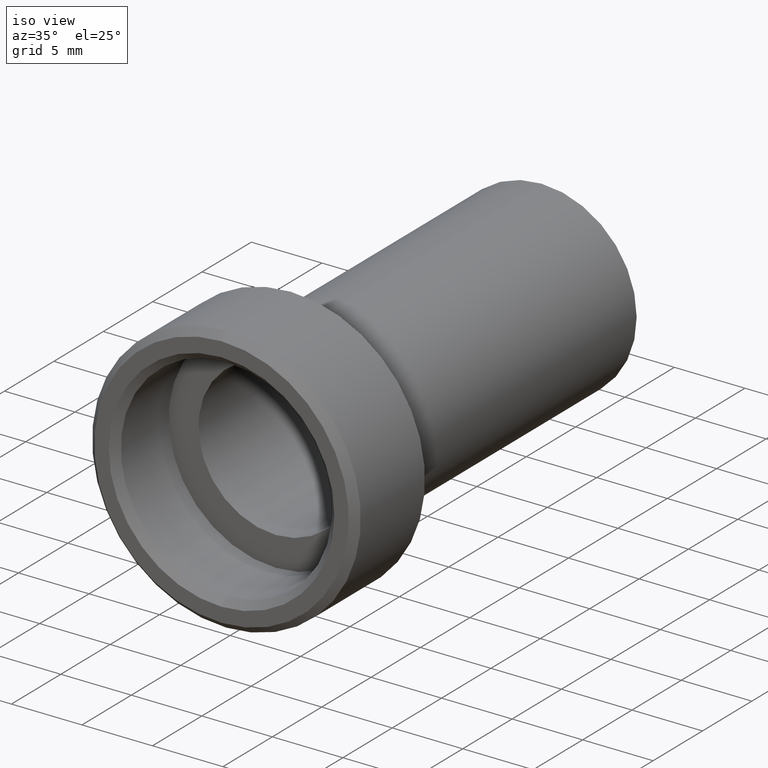
[diagram: clean part render]
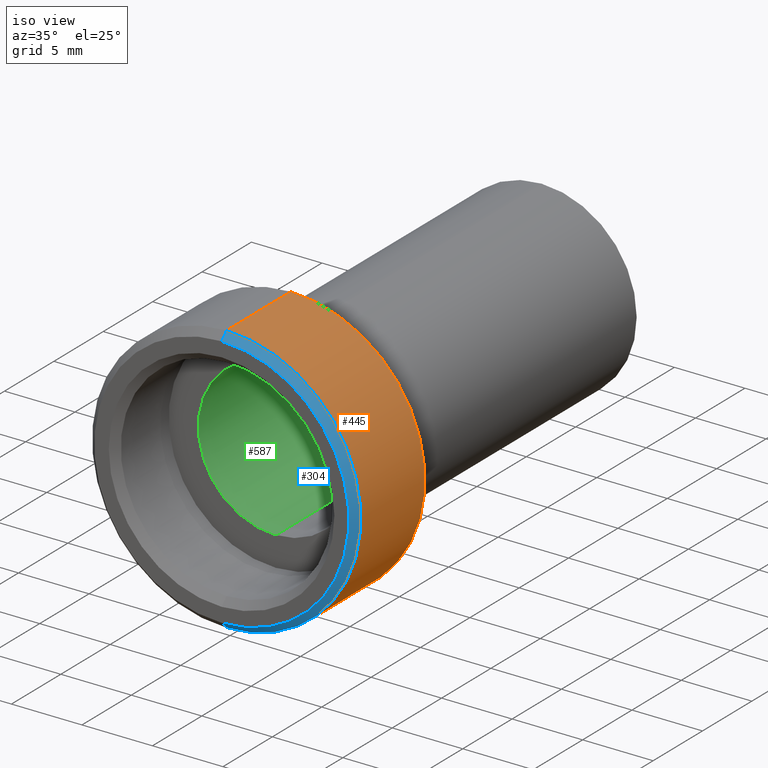
[diagram: same view with three faces highlighted in distinct colors, each labeled with its STEP entity id]
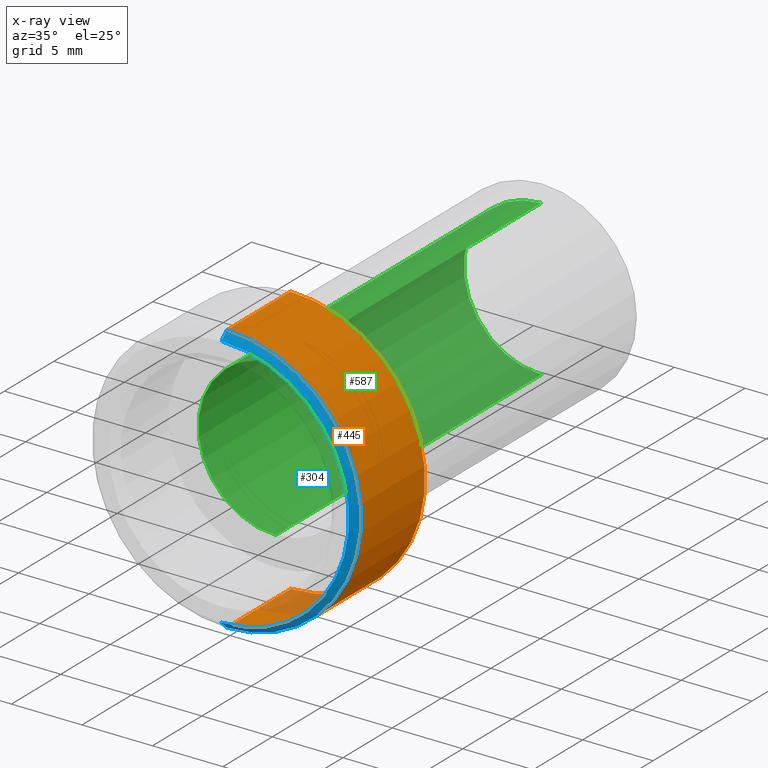
[diagram: x-ray of the same camera — body ghosted, the three highlighted faces saturated]
A machine part, iso view with three faces highlighted in distinct colors.
The next image is the same camera in x-ray (body ghosted, the three faces saturated) — at least one of them is partly hidden behind the body in this view.
Their STEP definitions:

[orange] entity #445 — the highlighted cylindrical surface (partial cylindrical patch) has radius 9.525 mm, axis along (-0, 1, -0).
#21 = AXIS2_PLACEMENT_3D ( 'NONE', #619, #345, #470 ) ;
#36 = VERTEX_POINT ( 'NONE', #77 ) ;
#38 = LINE ( 'NONE', #720, #203 ) ;
#52 = VERTEX_POINT ( 'NONE', #367 ) ;
#77 = CARTESIAN_POINT ( 'NONE',  ( 0.0000000000000000000, -5.357145825433104100, 9.525000000000007500 ) ) ;
#96 = CARTESIAN_POINT ( 'NONE',  ( 0.0000000000000000000, 44.59859774529311900, 9.525000000000005700 ) ) ;
#97 = EDGE_CURVE ( 'NONE', #36, #344, #809, .T. ) ;
#125 = CIRCLE ( 'NONE', #686, 9.525000000000003900 ) ;
#144 = CARTESIAN_POINT ( 'NONE',  ( 0.0000000000000000000, 1.142854174566894300, 0.0000000000000000000 ) ) ;
#182 = ORIENTED_EDGE ( 'NONE', *, *, #299, .T. ) ;
#193 = CIRCLE ( 'NONE', #703, 9.525000000000007500 ) ;
#203 = VECTOR ( 'NONE', #313, 1000.000000000000000 ) ;
#269 = CARTESIAN_POINT ( 'NONE',  ( 1.166476076187854400E-015, 1.142854174566894300, -9.525000000000003900 ) ) ;
#299 = EDGE_CURVE ( 'NONE', #52, #411, #38, .T. ) ;
#313 = DIRECTION ( 'NONE',  ( -0.0000000000000000000, 1.000000000000000000, -0.0000000000000000000 ) ) ;
#344 = VERTEX_POINT ( 'NONE', #670 ) ;
#345 = DIRECTION ( 'NONE',  ( -0.0000000000000000000, 1.000000000000000000, -0.0000000000000000000 ) ) ;
#355 = DIRECTION ( 'NONE',  ( -0.0000000000000000000, 1.000000000000000000, -0.0000000000000000000 ) ) ;
#367 = CARTESIAN_POINT ( 'NONE',  ( 1.166476076187854800E-015, -5.357145825433104100, -9.525000000000007500 ) ) ;
#411 = VERTEX_POINT ( 'NONE', #269 ) ;
#445 = ADVANCED_FACE ( 'NONE', ( #520 ), #886, .T. ) ;
#447 = ORIENTED_EDGE ( 'NONE', *, *, #696, .F. ) ;
#456 = EDGE_LOOP ( 'NONE', ( #839, #182, #447, #603 ) ) ;
#470 = DIRECTION ( 'NONE',  ( 0.0000000000000000000, 0.0000000000000000000, 1.000000000000000000 ) ) ;
#472 = DIRECTION ( 'NONE',  ( 0.0000000000000000000, 0.0000000000000000000, 1.000000000000000000 ) ) ;
#488 = EDGE_CURVE ( 'NONE', #36, #52, #193, .T. ) ;
#520 = FACE_OUTER_BOUND ( 'NONE', #456, .T. ) ;
#575 = DIRECTION ( 'NONE',  ( -0.0000000000000000000, 1.000000000000000000, -0.0000000000000000000 ) ) ;
#603 = ORIENTED_EDGE ( 'NONE', *, *, #97, .F. ) ;
#619 = CARTESIAN_POINT ( 'NONE',  ( 0.0000000000000000000, 44.59859774529311900, 0.0000000000000000000 ) ) ;
#627 = DIRECTION ( 'NONE',  ( 0.0000000000000000000, 0.0000000000000000000, 1.000000000000000000 ) ) ;
#670 = CARTESIAN_POINT ( 'NONE',  ( 0.0000000000000000000, 1.142854174566894300, 9.525000000000003900 ) ) ;
#686 = AXIS2_PLACEMENT_3D ( 'NONE', #144, #355, #627 ) ;
#696 = EDGE_CURVE ( 'NONE', #344, #411, #125, .T. ) ;
#703 = AXIS2_PLACEMENT_3D ( 'NONE', #748, #896, #472 ) ;
#720 = CARTESIAN_POINT ( 'NONE',  ( 1.166476076187854600E-015, 44.59859774529311900, -9.525000000000005700 ) ) ;
#748 = CARTESIAN_POINT ( 'NONE',  ( 0.0000000000000000000, -5.357145825433104100, 0.0000000000000000000 ) ) ;
#798 = VECTOR ( 'NONE', #575, 1000.000000000000000 ) ;
#809 = LINE ( 'NONE', #96, #798 ) ;
#839 = ORIENTED_EDGE ( 'NONE', *, *, #488, .T. ) ;
#886 = CYLINDRICAL_SURFACE ( 'NONE', #21, 9.525000000000005700 ) ;
#896 = DIRECTION ( 'NONE',  ( -0.0000000000000000000, 1.000000000000000000, -0.0000000000000000000 ) ) ;

[blue] entity #304 — the highlighted conical surface has half-angle 45 deg.
#36 = VERTEX_POINT ( 'NONE', #77 ) ;
#52 = VERTEX_POINT ( 'NONE', #367 ) ;
#61 = VECTOR ( 'NONE', #842, 1000.000000000000000 ) ;
#69 = LINE ( 'NONE', #170, #333 ) ;
#77 = CARTESIAN_POINT ( 'NONE',  ( 0.0000000000000000000, -5.357145825433104100, 9.525000000000007500 ) ) ;
#103 = FACE_OUTER_BOUND ( 'NONE', #753, .T. ) ;
#132 = CARTESIAN_POINT ( 'NONE',  ( 1.135859906209170800E-015, -5.857145825433105000, -9.025000000000005700 ) ) ;
#170 = CARTESIAN_POINT ( 'NONE',  ( 0.0000000000000000000, -5.857145825433105000, 9.025000000000005700 ) ) ;
#193 = CIRCLE ( 'NONE', #703, 9.525000000000007500 ) ;
#196 = CARTESIAN_POINT ( 'NONE',  ( 0.0000000000000000000, -5.857145825433105000, 9.025000000000005700 ) ) ;
#246 = ORIENTED_EDGE ( 'NONE', *, *, #607, .T. ) ;
#253 = DIRECTION ( 'NONE',  ( 0.0000000000000000000, 0.0000000000000000000, 1.000000000000000000 ) ) ;
#304 = ADVANCED_FACE ( 'NONE', ( #103 ), #419, .T. ) ;
#317 = CARTESIAN_POINT ( 'NONE',  ( 0.0000000000000000000, -5.857145825433105000, 0.0000000000000000000 ) ) ;
#333 = VECTOR ( 'NONE', #725, 1000.000000000000000 ) ;
#337 = DIRECTION ( 'NONE',  ( -0.0000000000000000000, 1.000000000000000000, -0.0000000000000000000 ) ) ;
#367 = CARTESIAN_POINT ( 'NONE',  ( 1.166476076187854800E-015, -5.357145825433104100, -9.525000000000007500 ) ) ;
#400 = DIRECTION ( 'NONE',  ( 0.0000000000000000000, 0.0000000000000000000, 1.000000000000000000 ) ) ;
#401 = AXIS2_PLACEMENT_3D ( 'NONE', #317, #591, #253 ) ;
#419 = CONICAL_SURFACE ( 'NONE', #803, 9.025000000000005700, 0.7853981633974500600 ) ;
#472 = DIRECTION ( 'NONE',  ( 0.0000000000000000000, 0.0000000000000000000, 1.000000000000000000 ) ) ;
#473 = ORIENTED_EDGE ( 'NONE', *, *, #488, .F. ) ;
#488 = EDGE_CURVE ( 'NONE', #36, #52, #193, .T. ) ;
#522 = VERTEX_POINT ( 'NONE', #132 ) ;
#523 = VERTEX_POINT ( 'NONE', #196 ) ;
#541 = CIRCLE ( 'NONE', #401, 9.025000000000005700 ) ;
#591 = DIRECTION ( 'NONE',  ( -0.0000000000000000000, 1.000000000000000000, -0.0000000000000000000 ) ) ;
#607 = EDGE_CURVE ( 'NONE', #522, #52, #849, .T. ) ;
#649 = CARTESIAN_POINT ( 'NONE',  ( 0.0000000000000000000, -5.857145825433105000, 0.0000000000000000000 ) ) ;
#673 = ORIENTED_EDGE ( 'NONE', *, *, #854, .T. ) ;
#675 = ORIENTED_EDGE ( 'NONE', *, *, #889, .F. ) ;
#703 = AXIS2_PLACEMENT_3D ( 'NONE', #748, #896, #472 ) ;
#725 = DIRECTION ( 'NONE',  ( 0.0000000000000000000, 0.7071067811865463500, 0.7071067811865487900 ) ) ;
#748 = CARTESIAN_POINT ( 'NONE',  ( 0.0000000000000000000, -5.357145825433104100, 0.0000000000000000000 ) ) ;
#753 = EDGE_LOOP ( 'NONE', ( #673, #246, #473, #675 ) ) ;
#803 = AXIS2_PLACEMENT_3D ( 'NONE', #649, #337, #400 ) ;
#840 = CARTESIAN_POINT ( 'NONE',  ( 1.105243736230487000E-015, -5.857145825433105000, -9.025000000000005700 ) ) ;
#842 = DIRECTION ( 'NONE',  ( 8.659560562354948900E-017, 0.7071067811865463500, -0.7071067811865487900 ) ) ;
#849 = LINE ( 'NONE', #840, #61 ) ;
#854 = EDGE_CURVE ( 'NONE', #523, #522, #541, .T. ) ;
#889 = EDGE_CURVE ( 'NONE', #523, #36, #69, .T. ) ;
#896 = DIRECTION ( 'NONE',  ( -0.0000000000000000000, 1.000000000000000000, -0.0000000000000000000 ) ) ;

[green] entity #587 — the highlighted cylindrical surface (partial cylindrical patch) has radius 5.5 mm, axis along (-0, 1, -0).
#7 = AXIS2_PLACEMENT_3D ( 'NONE', #761, #831, #63 ) ;
#14 = EDGE_CURVE ( 'NONE', #589, #431, #830, .T. ) ;
#56 = CARTESIAN_POINT ( 'NONE',  ( 0.0000000000000000000, 26.54285417456689400, 0.0000000000000000000 ) ) ;
#63 = DIRECTION ( 'NONE',  ( 0.0000000000000000000, 0.0000000000000000000, 1.000000000000000000 ) ) ;
#66 = CARTESIAN_POINT ( 'NONE',  ( 6.735557395310448900E-016, -0.3571458254331069700, -5.500000000000005300 ) ) ;
#74 = EDGE_LOOP ( 'NONE', ( #797, #585, #895, #632 ) ) ;
#86 = AXIS2_PLACEMENT_3D ( 'NONE', #303, #480, #572 ) ;
#114 = EDGE_CURVE ( 'NONE', #589, #302, #413, .T. ) ;
#121 = CARTESIAN_POINT ( 'NONE',  ( 0.0000000000000000000, 26.54285417456689400, 5.500000000000005300 ) ) ;
#154 = LINE ( 'NONE', #550, #383 ) ;
#229 = DIRECTION ( 'NONE',  ( -0.0000000000000000000, 1.000000000000000000, -0.0000000000000000000 ) ) ;
#239 = VECTOR ( 'NONE', #229, 1000.000000000000000 ) ;
#302 = VERTEX_POINT ( 'NONE', #746 ) ;
#303 = CARTESIAN_POINT ( 'NONE',  ( 0.0000000000000000000, -0.3571458254331069700, 0.0000000000000000000 ) ) ;
#336 = FACE_OUTER_BOUND ( 'NONE', #74, .T. ) ;
#371 = EDGE_CURVE ( 'NONE', #302, #402, #446, .T. ) ;
#383 = VECTOR ( 'NONE', #754, 1000.000000000000000 ) ;
#402 = VERTEX_POINT ( 'NONE', #121 ) ;
#413 = LINE ( 'NONE', #706, #239 ) ;
#431 = VERTEX_POINT ( 'NONE', #524 ) ;
#446 = CIRCLE ( 'NONE', #487, 5.500000000000005300 ) ;
#462 = DIRECTION ( 'NONE',  ( -0.0000000000000000000, 1.000000000000000000, -0.0000000000000000000 ) ) ;
#468 = DIRECTION ( 'NONE',  ( 0.0000000000000000000, 0.0000000000000000000, 1.000000000000000000 ) ) ;
#477 = EDGE_CURVE ( 'NONE', #431, #402, #154, .T. ) ;
#480 = DIRECTION ( 'NONE',  ( -0.0000000000000000000, 1.000000000000000000, -0.0000000000000000000 ) ) ;
#485 = CYLINDRICAL_SURFACE ( 'NONE', #7, 5.500000000000005300 ) ;
#487 = AXIS2_PLACEMENT_3D ( 'NONE', #56, #462, #468 ) ;
#524 = CARTESIAN_POINT ( 'NONE',  ( 0.0000000000000000000, -0.3571458254331069700, 5.500000000000005300 ) ) ;
#550 = CARTESIAN_POINT ( 'NONE',  ( 0.0000000000000000000, 44.59859774529311900, 5.500000000000005300 ) ) ;
#572 = DIRECTION ( 'NONE',  ( 0.0000000000000000000, 0.0000000000000000000, 1.000000000000000000 ) ) ;
#585 = ORIENTED_EDGE ( 'NONE', *, *, #114, .T. ) ;
#587 = ADVANCED_FACE ( 'NONE', ( #336 ), #485, .F. ) ;
#589 = VERTEX_POINT ( 'NONE', #66 ) ;
#632 = ORIENTED_EDGE ( 'NONE', *, *, #477, .F. ) ;
#706 = CARTESIAN_POINT ( 'NONE',  ( 6.735557395310448900E-016, 44.59859774529311900, -5.500000000000005300 ) ) ;
#746 = CARTESIAN_POINT ( 'NONE',  ( 7.041719095097287800E-016, 26.54285417456689400, -5.500000000000005300 ) ) ;
#754 = DIRECTION ( 'NONE',  ( -0.0000000000000000000, 1.000000000000000000, -0.0000000000000000000 ) ) ;
#761 = CARTESIAN_POINT ( 'NONE',  ( 0.0000000000000000000, 44.59859774529311900, 0.0000000000000000000 ) ) ;
#797 = ORIENTED_EDGE ( 'NONE', *, *, #14, .F. ) ;
#830 = CIRCLE ( 'NONE', #86, 5.500000000000005300 ) ;
#831 = DIRECTION ( 'NONE',  ( -0.0000000000000000000, 1.000000000000000000, -0.0000000000000000000 ) ) ;
#895 = ORIENTED_EDGE ( 'NONE', *, *, #371, .T. ) ;